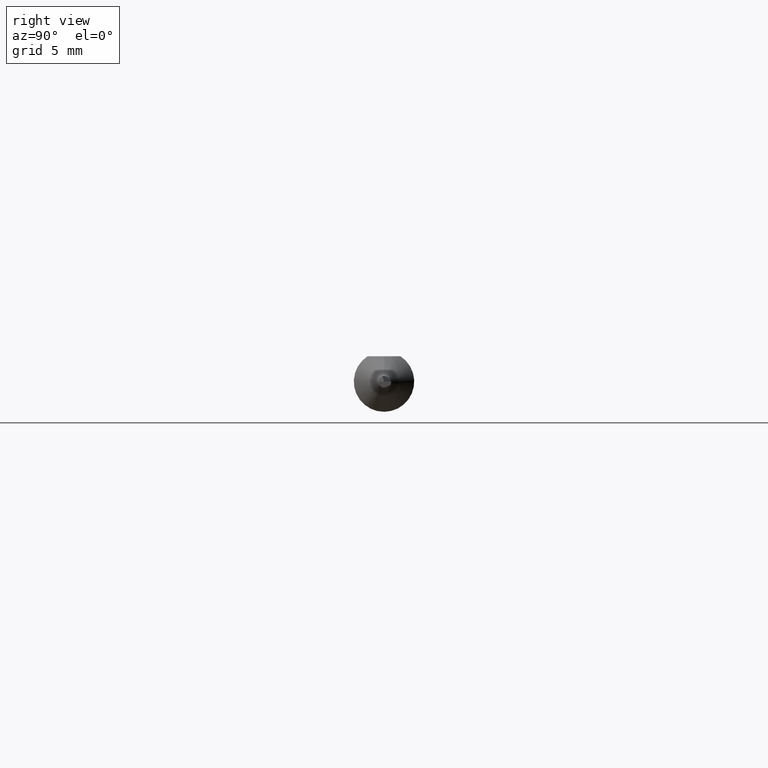
[diagram: clean part render]
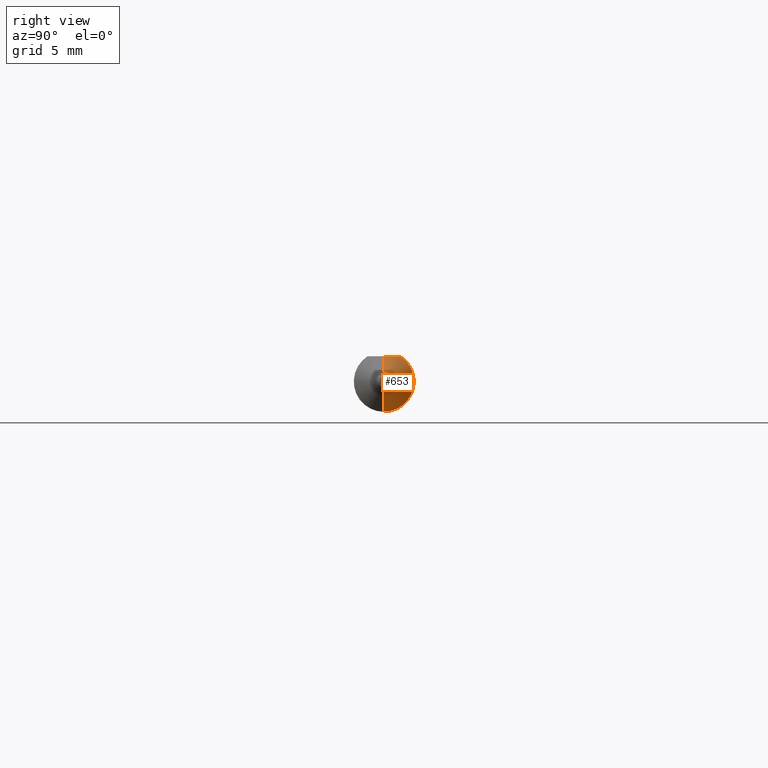
[diagram: same view with one face highlighted and labeled with its STEP entity id]
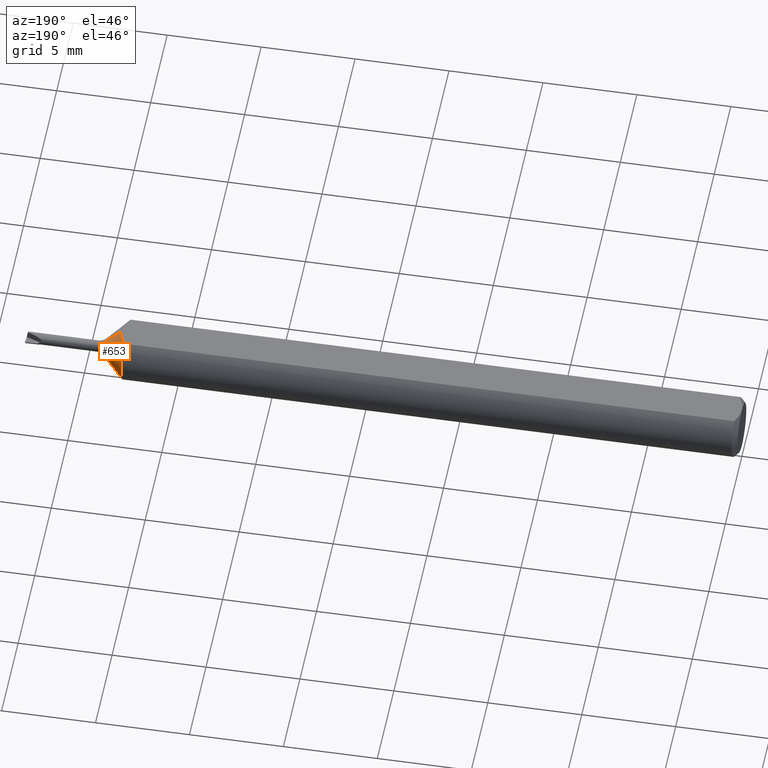
[diagram: same view with one face highlighted and labeled with its STEP entity id]
A machine part, right view. The second image highlights one B-rep face of the part: STEP entity #653.
A second angle (auxiliary view) of the same face is appended — the face is thin or edge-on in the first view.
In plain terms, the highlighted conical surface has half-angle 45 deg.
Its self-contained STEP definition (entity closure, byte-faithful):
#15 = EDGE_CURVE ( 'NONE', #584, #255, #550, .T. ) ;
#17 = CARTESIAN_POINT ( 'NONE',  ( 1.298328875033864405, 0.01191462272770363318, 0.05235000000000001458 ) ) ;
#22 = AXIS2_PLACEMENT_3D ( 'NONE', #66, #450, #179 ) ;
#66 = CARTESIAN_POINT ( 'NONE',  ( 1.332677669529663822, 0.000000000000000000, 0.000000000000000000 ) ) ;
#77 = AXIS2_PLACEMENT_3D ( 'NONE', #416, #519, #578 ) ;
#139 = ORIENTED_EDGE ( 'NONE', *, *, #540, .F. ) ;
#147 = CARTESIAN_POINT ( 'NONE',  ( 1.299400000000000110, -1.923771709464471706E-20, 0.05235000000000001458 ) ) ;
#179 = DIRECTION ( 'NONE',  ( 0.000000000000000000, 0.000000000000000000, 1.000000000000000000 ) ) ;
#180 = CARTESIAN_POINT ( 'NONE',  ( 1.289400000000000102, 0.03386738844375218604, 0.05235000000000001458 ) ) ;
#195 = CARTESIAN_POINT ( 'NONE',  ( 1.332677669529663822, 0.000000000000000000, 0.01907233047033634471 ) ) ;
#214 = ORIENTED_EDGE ( 'NONE', *, *, #365, .F. ) ;
#216 = CONICAL_SURFACE ( 'NONE', #22, 0.01907233047033634471, 0.7853981633974490562 ) ;
#232 = CARTESIAN_POINT ( 'NONE',  ( 1.289400000000000102, 0.000000000000000000, 0.000000000000000000 ) ) ;
#236 = CARTESIAN_POINT ( 'NONE',  ( 1.299399999999999888, 0.005921331895061767055, 0.05235000000000002152 ) ) ;
#240 = AXIS2_PLACEMENT_3D ( 'NONE', #232, #347, #662 ) ;
#255 = VERTEX_POINT ( 'NONE', #278 ) ;
#272 = VERTEX_POINT ( 'NONE', #651 ) ;
#278 = CARTESIAN_POINT ( 'NONE',  ( 1.332677669529663822, 2.335686846277793492E-18, -0.01907233047033634471 ) ) ;
#285 = FACE_OUTER_BOUND ( 'NONE', #448, .T. ) ;
#297 = DIRECTION ( 'NONE',  ( -0.7071067811865469066, 0.000000000000000000, 0.7071067811865480168 ) ) ;
#331 = CIRCLE ( 'NONE', #240, 0.06235000000000000264 ) ;
#335 = CARTESIAN_POINT ( 'NONE',  ( 1.289400000000000102, 0.03386738844375218604, 0.05235000000000001458 ) ) ;
#347 = DIRECTION ( 'NONE',  ( -1.000000000000000000, -0.000000000000000000, -0.000000000000000000 ) ) ;
#365 = EDGE_CURVE ( 'NONE', #484, #272, #331, .T. ) ;
#368 = EDGE_CURVE ( 'NONE', #484, #566, #594, .T. ) ;
#372 = ORIENTED_EDGE ( 'NONE', *, *, #15, .T. ) ;
#389 = CARTESIAN_POINT ( 'NONE',  ( 1.332677669529663822, 2.335686846277793492E-18, -0.01907233047033634471 ) ) ;
#402 = ORIENTED_EDGE ( 'NONE', *, *, #418, .T. ) ;
#404 = CARTESIAN_POINT ( 'NONE',  ( 1.294736758639427832, 0.02320886323228526019, 0.05235000000000002152 ) ) ;
#413 = LINE ( 'NONE', #195, #682 ) ;
#416 = CARTESIAN_POINT ( 'NONE',  ( 1.332677669529663822, 0.000000000000000000, 0.000000000000000000 ) ) ;
#418 = EDGE_CURVE ( 'NONE', #255, #272, #495, .T. ) ;
#448 = EDGE_LOOP ( 'NONE', ( #372, #402, #214, #640, #139 ) ) ;
#450 = DIRECTION ( 'NONE',  ( -1.000000000000000000, -0.000000000000000000, -0.000000000000000000 ) ) ;
#484 = VERTEX_POINT ( 'NONE', #335 ) ;
#495 = LINE ( 'NONE', #389, #509 ) ;
#509 = VECTOR ( 'NONE', #656, 39.37007874015748854 ) ;
#515 = CARTESIAN_POINT ( 'NONE',  ( 1.332677669529663822, 0.000000000000000000, 0.01907233047033634471 ) ) ;
#519 = DIRECTION ( 'NONE',  ( -1.000000000000000000, -0.000000000000000000, -0.000000000000000000 ) ) ;
#540 = EDGE_CURVE ( 'NONE', #584, #566, #413, .T. ) ;
#550 = CIRCLE ( 'NONE', #77, 0.01907233047033634471 ) ;
#566 = VERTEX_POINT ( 'NONE', #147 ) ;
#578 = DIRECTION ( 'NONE',  ( 0.000000000000000000, 0.000000000000000000, 1.000000000000000000 ) ) ;
#584 = VERTEX_POINT ( 'NONE', #515 ) ;
#594 = B_SPLINE_CURVE_WITH_KNOTS ( 'NONE', 3,
 ( #180, #608, #404, #17, #236, #613 ),
 .UNSPECIFIED., .F., .F.,
 ( 4, 2, 4 ),
 ( 0.002138043958543064428, 0.002587078562153630537, 0.003036113165764197080 ),
 .UNSPECIFIED. ) ;
#608 = CARTESIAN_POINT ( 'NONE',  ( 1.292245553868476504, 0.02862871218756115124, 0.05235000000000002152 ) ) ;
#613 = CARTESIAN_POINT ( 'NONE',  ( 1.299400000000000110, -1.923771709464471706E-20, 0.05235000000000001458 ) ) ;
#640 = ORIENTED_EDGE ( 'NONE', *, *, #368, .T. ) ;
#651 = CARTESIAN_POINT ( 'NONE',  ( 1.289400000000000102, 7.635672792683746671E-18, -0.06235000000000000264 ) ) ;
#653 = ADVANCED_FACE ( 'NONE', ( #285 ), #216, .T. ) ;
#656 = DIRECTION ( 'NONE',  ( -0.7071067811865469066, 8.659560562354939021E-17, -0.7071067811865480168 ) ) ;
#662 = DIRECTION ( 'NONE',  ( 0.000000000000000000, 0.000000000000000000, 1.000000000000000000 ) ) ;
#682 = VECTOR ( 'NONE', #297, 39.37007874015748854 ) ;